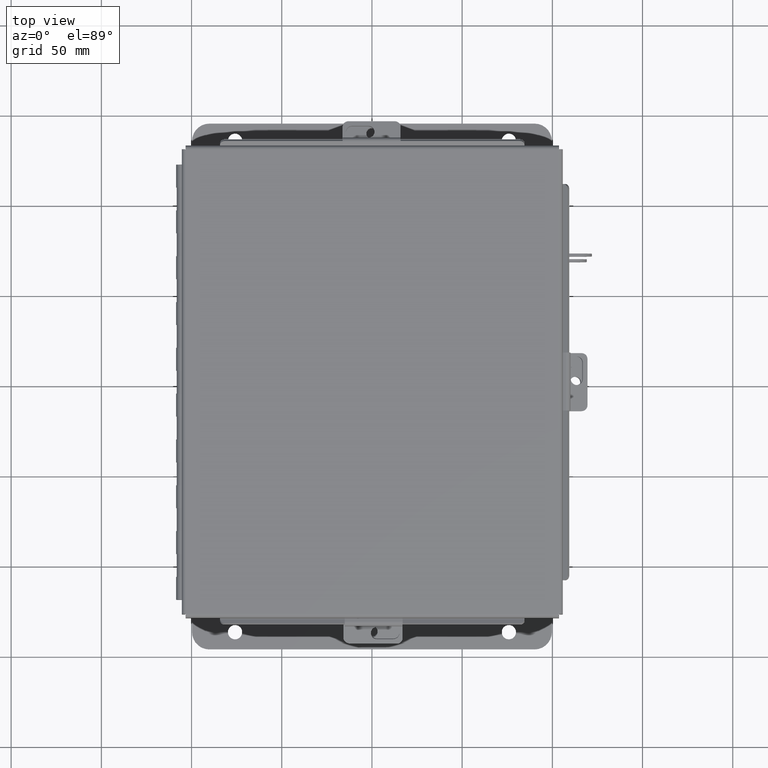
[diagram: clean part render]
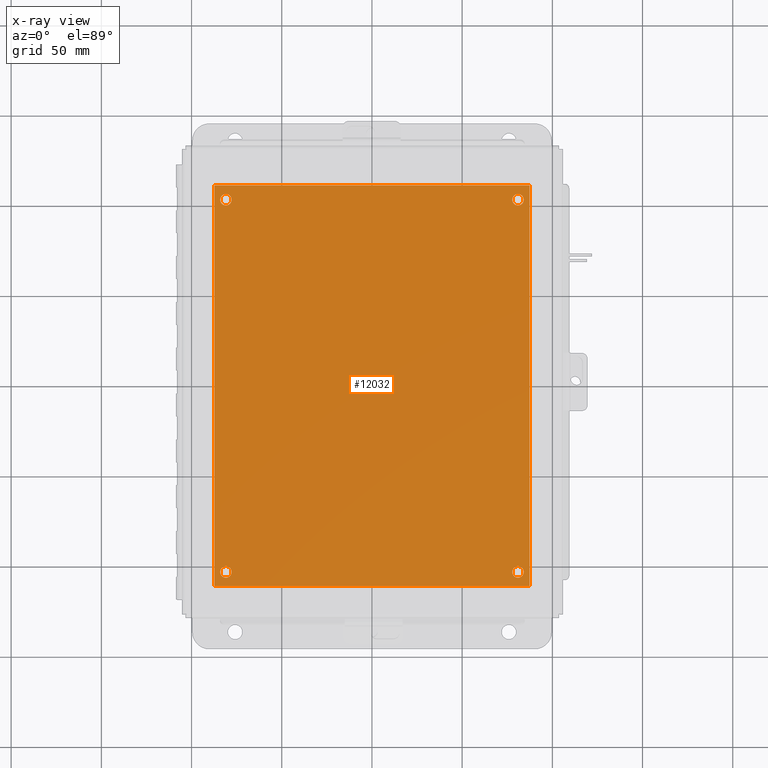
[diagram: x-ray — body ghosted, one internal face saturated and labeled with its STEP entity id]
A machine part, top view, then the same camera in x-ray: the body is ghosted and one INTERNAL B-rep face — a face not visible from any outside direction — is saturated and labeled: STEP entity #12032.
In plain terms, the highlighted planar face has unit normal (0, 0, -1).
Its self-contained STEP definition (entity closure, byte-faithful):
#265 = EDGE_LOOP ( 'NONE', ( #10305, #16106 ) ) ;
#289 = EDGE_CURVE ( 'NONE', #4527, #14853, #4626, .T. ) ;
#401 = DIRECTION ( 'NONE',  ( -1.000000000000000000, 0.0000000000000000000, 0.0000000000000000000 ) ) ;
#489 = DIRECTION ( 'NONE',  ( -0.0000000000000000000, -0.0000000000000000000, 1.000000000000000000 ) ) ;
#604 = DIRECTION ( 'NONE',  ( -0.0000000000000000000, -1.000000000000000000, -0.0000000000000000000 ) ) ;
#608 = EDGE_CURVE ( 'NONE', #15416, #10532, #12994, .T. ) ;
#741 = AXIS2_PLACEMENT_3D ( 'NONE', #4948, #13850, #6229 ) ;
#749 = VECTOR ( 'NONE', #5722, 39.37007874015748100 ) ;
#998 = CARTESIAN_POINT ( 'NONE',  ( 0.1250000000000003300, 8.437999999999998800, -0.07470000000000003000 ) ) ;
#1005 = AXIS2_PLACEMENT_3D ( 'NONE', #4361, #13262, #5628 ) ;
#1078 = CARTESIAN_POINT ( 'NONE',  ( 6.875000000000000000, 8.750000000000000000, -0.07470000000000003000 ) ) ;
#1802 = VERTEX_POINT ( 'NONE', #4576 ) ;
#1870 = CARTESIAN_POINT ( 'NONE',  ( 0.0000000000000000000, 0.0000000000000000000, -0.07470000000000003000 ) ) ;
#2023 = CARTESIAN_POINT ( 'NONE',  ( 6.625000000000002700, 0.3120000000000020500, -0.07470000000000003000 ) ) ;
#2268 = AXIS2_PLACEMENT_3D ( 'NONE', #1870, #4465, #13390 ) ;
#2452 = CIRCLE ( 'NONE', #5600, 0.1250000000000000600 ) ;
#2546 = CARTESIAN_POINT ( 'NONE',  ( 0.2500000000000020000, 0.3120000000000015000, -0.07470000000000003000 ) ) ;
#2597 = LINE ( 'NONE', #3172, #15361 ) ;
#2606 = VERTEX_POINT ( 'NONE', #998 ) ;
#3172 = CARTESIAN_POINT ( 'NONE',  ( 0.0000000000000000000, 0.0000000000000000000, -0.07470000000000003000 ) ) ;
#3182 = PLANE ( 'NONE',  #2268 ) ;
#3323 = DIRECTION ( 'NONE',  ( -1.000000000000000000, 0.0000000000000000000, 0.0000000000000000000 ) ) ;
#3820 = CARTESIAN_POINT ( 'NONE',  ( 6.875000000000000000, 0.0000000000000000000, -0.07470000000000003000 ) ) ;
#3821 = AXIS2_PLACEMENT_3D ( 'NONE', #13214, #5579, #14494 ) ;
#3825 = DIRECTION ( 'NONE',  ( -1.000000000000000000, 0.0000000000000000000, 0.0000000000000000000 ) ) ;
#3906 = EDGE_LOOP ( 'NONE', ( #8181, #14010, #12775, #11750 ) ) ;
#3922 = VERTEX_POINT ( 'NONE', #13206 ) ;
#3994 = EDGE_CURVE ( 'NONE', #7402, #11184, #2597, .T. ) ;
#4153 = LINE ( 'NONE', #6945, #749 ) ;
#4203 = EDGE_LOOP ( 'NONE', ( #12886, #16337 ) ) ;
#4287 = FACE_BOUND ( 'NONE', #265, .T. ) ;
#4361 = CARTESIAN_POINT ( 'NONE',  ( 0.2500000000000003300, 8.437999999999998800, -0.07470000000000003000 ) ) ;
#4465 = DIRECTION ( 'NONE',  ( 0.0000000000000000000, 0.0000000000000000000, -1.000000000000000000 ) ) ;
#4527 = VERTEX_POINT ( 'NONE', #6250 ) ;
#4576 = CARTESIAN_POINT ( 'NONE',  ( 6.500000000000000900, 8.438000000000000600, -0.07470000000000003000 ) ) ;
#4626 = CIRCLE ( 'NONE', #6832, 0.1250000000000004400 ) ;
#4711 = ORIENTED_EDGE ( 'NONE', *, *, #6295, .T. ) ;
#4948 = CARTESIAN_POINT ( 'NONE',  ( 6.625000000000001800, 8.438000000000000600, -0.07470000000000003000 ) ) ;
#5240 = ORIENTED_EDGE ( 'NONE', *, *, #12931, .T. ) ;
#5548 = CARTESIAN_POINT ( 'NONE',  ( 0.3750000000000020000, 0.3120000000000015000, -0.07470000000000003000 ) ) ;
#5579 = DIRECTION ( 'NONE',  ( -0.0000000000000000000, -0.0000000000000000000, 1.000000000000000000 ) ) ;
#5600 = AXIS2_PLACEMENT_3D ( 'NONE', #2546, #11450, #3825 ) ;
#5628 = DIRECTION ( 'NONE',  ( -1.000000000000000000, 0.0000000000000000000, 0.0000000000000000000 ) ) ;
#5714 = CIRCLE ( 'NONE', #3821, 0.1250000000000004400 ) ;
#5722 = DIRECTION ( 'NONE',  ( 1.000000000000000000, 0.0000000000000000000, 0.0000000000000000000 ) ) ;
#5816 = CARTESIAN_POINT ( 'NONE',  ( 0.1250000000000019200, 0.3120000000000015000, -0.07470000000000003000 ) ) ;
#6021 = CARTESIAN_POINT ( 'NONE',  ( 0.0000000000000000000, 8.750000000000000000, -0.07470000000000003000 ) ) ;
#6108 = EDGE_CURVE ( 'NONE', #8190, #16211, #8113, .T. ) ;
#6229 = DIRECTION ( 'NONE',  ( -1.000000000000000000, 0.0000000000000000000, 0.0000000000000000000 ) ) ;
#6237 = CARTESIAN_POINT ( 'NONE',  ( 0.2500000000000003300, 8.437999999999998800, -0.07470000000000003000 ) ) ;
#6250 = CARTESIAN_POINT ( 'NONE',  ( 6.500000000000002700, 0.3120000000000020500, -0.07470000000000003000 ) ) ;
#6295 = EDGE_CURVE ( 'NONE', #1802, #3922, #5714, .T. ) ;
#6468 = DIRECTION ( 'NONE',  ( 0.0000000000000000000, 1.000000000000000000, 0.0000000000000000000 ) ) ;
#6629 = AXIS2_PLACEMENT_3D ( 'NONE', #6237, #15154, #7493 ) ;
#6694 = CIRCLE ( 'NONE', #6629, 0.1250000000000000000 ) ;
#6832 = AXIS2_PLACEMENT_3D ( 'NONE', #15660, #8030, #401 ) ;
#6945 = CARTESIAN_POINT ( 'NONE',  ( 0.0000000000000000000, 0.0000000000000000000, -0.07470000000000003000 ) ) ;
#7402 = VERTEX_POINT ( 'NONE', #6021 ) ;
#7493 = DIRECTION ( 'NONE',  ( -1.000000000000000000, 0.0000000000000000000, 0.0000000000000000000 ) ) ;
#7598 = AXIS2_PLACEMENT_3D ( 'NONE', #2023, #10965, #3323 ) ;
#7652 = FACE_BOUND ( 'NONE', #14175, .T. ) ;
#7826 = EDGE_CURVE ( 'NONE', #11184, #8190, #4153, .T. ) ;
#8030 = DIRECTION ( 'NONE',  ( -0.0000000000000000000, -0.0000000000000000000, 1.000000000000000000 ) ) ;
#8057 = FACE_BOUND ( 'NONE', #10268, .T. ) ;
#8097 = EDGE_CURVE ( 'NONE', #3922, #1802, #14508, .T. ) ;
#8113 = LINE ( 'NONE', #14119, #11497 ) ;
#8127 = CARTESIAN_POINT ( 'NONE',  ( 0.2500000000000020000, 0.3120000000000015000, -0.07470000000000003000 ) ) ;
#8181 = ORIENTED_EDGE ( 'NONE', *, *, #3994, .F. ) ;
#8185 = VERTEX_POINT ( 'NONE', #14022 ) ;
#8190 = VERTEX_POINT ( 'NONE', #3820 ) ;
#8231 = AXIS2_PLACEMENT_3D ( 'NONE', #8127, #489, #9413 ) ;
#8382 = ORIENTED_EDGE ( 'NONE', *, *, #8097, .T. ) ;
#9062 = EDGE_CURVE ( 'NONE', #2606, #8185, #6694, .T. ) ;
#9084 = VECTOR ( 'NONE', #10455, 39.37007874015748100 ) ;
#9271 = EDGE_CURVE ( 'NONE', #16211, #7402, #9475, .T. ) ;
#9413 = DIRECTION ( 'NONE',  ( -1.000000000000000000, 0.0000000000000000000, 0.0000000000000000000 ) ) ;
#9475 = LINE ( 'NONE', #14244, #9084 ) ;
#10268 = EDGE_LOOP ( 'NONE', ( #15845, #5240 ) ) ;
#10305 = ORIENTED_EDGE ( 'NONE', *, *, #14951, .T. ) ;
#10455 = DIRECTION ( 'NONE',  ( -1.000000000000000000, -0.0000000000000000000, -0.0000000000000000000 ) ) ;
#10532 = VERTEX_POINT ( 'NONE', #5816 ) ;
#10648 = FACE_BOUND ( 'NONE', #4203, .T. ) ;
#10965 = DIRECTION ( 'NONE',  ( -0.0000000000000000000, -0.0000000000000000000, 1.000000000000000000 ) ) ;
#11059 = FACE_OUTER_BOUND ( 'NONE', #3906, .T. ) ;
#11128 = CIRCLE ( 'NONE', #7598, 0.1250000000000004400 ) ;
#11184 = VERTEX_POINT ( 'NONE', #12209 ) ;
#11450 = DIRECTION ( 'NONE',  ( -0.0000000000000000000, -0.0000000000000000000, 1.000000000000000000 ) ) ;
#11497 = VECTOR ( 'NONE', #6468, 39.37007874015748100 ) ;
#11750 = ORIENTED_EDGE ( 'NONE', *, *, #7826, .F. ) ;
#12032 = ADVANCED_FACE ( 'NONE', ( #8057, #4287, #7652, #10648, #11059 ), #3182, .T. ) ;
#12209 = CARTESIAN_POINT ( 'NONE',  ( 0.0000000000000000000, 0.0000000000000000000, -0.07470000000000003000 ) ) ;
#12775 = ORIENTED_EDGE ( 'NONE', *, *, #6108, .F. ) ;
#12886 = ORIENTED_EDGE ( 'NONE', *, *, #13147, .T. ) ;
#12931 = EDGE_CURVE ( 'NONE', #10532, #15416, #2452, .T. ) ;
#12994 = CIRCLE ( 'NONE', #8231, 0.1250000000000000600 ) ;
#13147 = EDGE_CURVE ( 'NONE', #8185, #2606, #16207, .T. ) ;
#13206 = CARTESIAN_POINT ( 'NONE',  ( 6.750000000000001800, 8.438000000000000600, -0.07470000000000003000 ) ) ;
#13214 = CARTESIAN_POINT ( 'NONE',  ( 6.625000000000001800, 8.438000000000000600, -0.07470000000000003000 ) ) ;
#13262 = DIRECTION ( 'NONE',  ( -0.0000000000000000000, -0.0000000000000000000, 1.000000000000000000 ) ) ;
#13313 = CARTESIAN_POINT ( 'NONE',  ( 6.750000000000003600, 0.3120000000000020500, -0.07470000000000003000 ) ) ;
#13390 = DIRECTION ( 'NONE',  ( -1.000000000000000000, 0.0000000000000000000, -0.0000000000000000000 ) ) ;
#13850 = DIRECTION ( 'NONE',  ( -0.0000000000000000000, -0.0000000000000000000, 1.000000000000000000 ) ) ;
#14010 = ORIENTED_EDGE ( 'NONE', *, *, #9271, .F. ) ;
#14022 = CARTESIAN_POINT ( 'NONE',  ( 0.3750000000000003900, 8.437999999999998800, -0.07470000000000003000 ) ) ;
#14119 = CARTESIAN_POINT ( 'NONE',  ( 6.875000000000000000, 0.0000000000000000000, -0.07470000000000003000 ) ) ;
#14175 = EDGE_LOOP ( 'NONE', ( #8382, #4711 ) ) ;
#14244 = CARTESIAN_POINT ( 'NONE',  ( 0.0000000000000000000, 8.750000000000000000, -0.07470000000000003000 ) ) ;
#14494 = DIRECTION ( 'NONE',  ( -1.000000000000000000, 0.0000000000000000000, 0.0000000000000000000 ) ) ;
#14508 = CIRCLE ( 'NONE', #741, 0.1250000000000004400 ) ;
#14853 = VERTEX_POINT ( 'NONE', #13313 ) ;
#14951 = EDGE_CURVE ( 'NONE', #14853, #4527, #11128, .T. ) ;
#15154 = DIRECTION ( 'NONE',  ( -0.0000000000000000000, -0.0000000000000000000, 1.000000000000000000 ) ) ;
#15361 = VECTOR ( 'NONE', #604, 39.37007874015748100 ) ;
#15416 = VERTEX_POINT ( 'NONE', #5548 ) ;
#15660 = CARTESIAN_POINT ( 'NONE',  ( 6.625000000000002700, 0.3120000000000020500, -0.07470000000000003000 ) ) ;
#15845 = ORIENTED_EDGE ( 'NONE', *, *, #608, .T. ) ;
#16106 = ORIENTED_EDGE ( 'NONE', *, *, #289, .T. ) ;
#16207 = CIRCLE ( 'NONE', #1005, 0.1250000000000000000 ) ;
#16211 = VERTEX_POINT ( 'NONE', #1078 ) ;
#16337 = ORIENTED_EDGE ( 'NONE', *, *, #9062, .T. ) ;